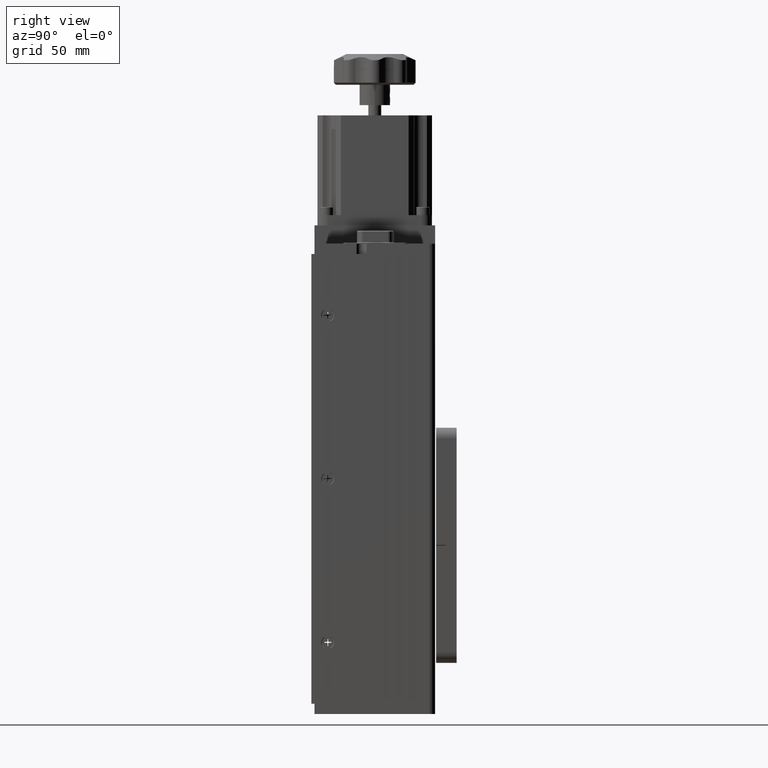
[diagram: clean part render]
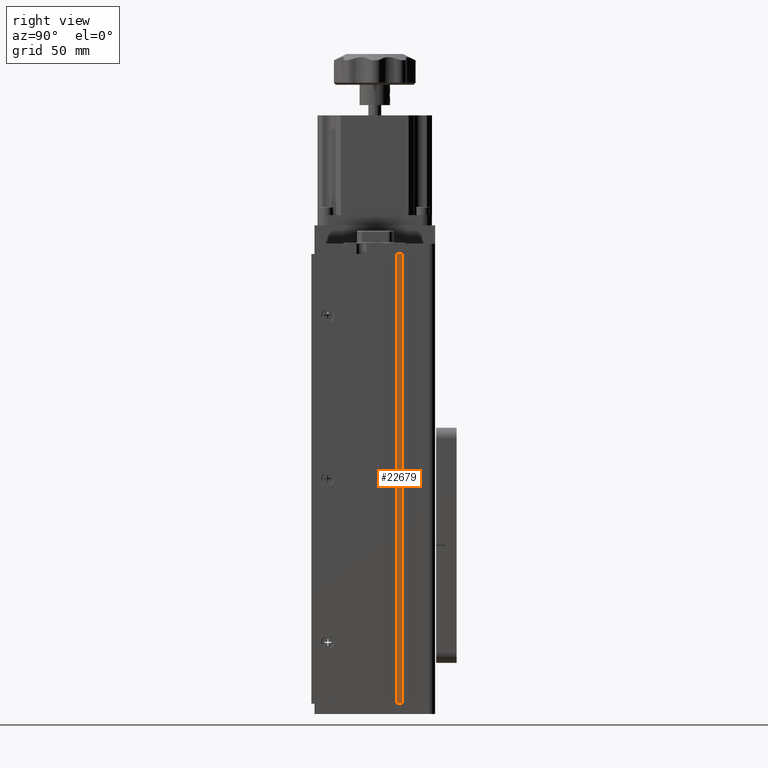
[diagram: same view with one face highlighted and labeled with its STEP entity id]
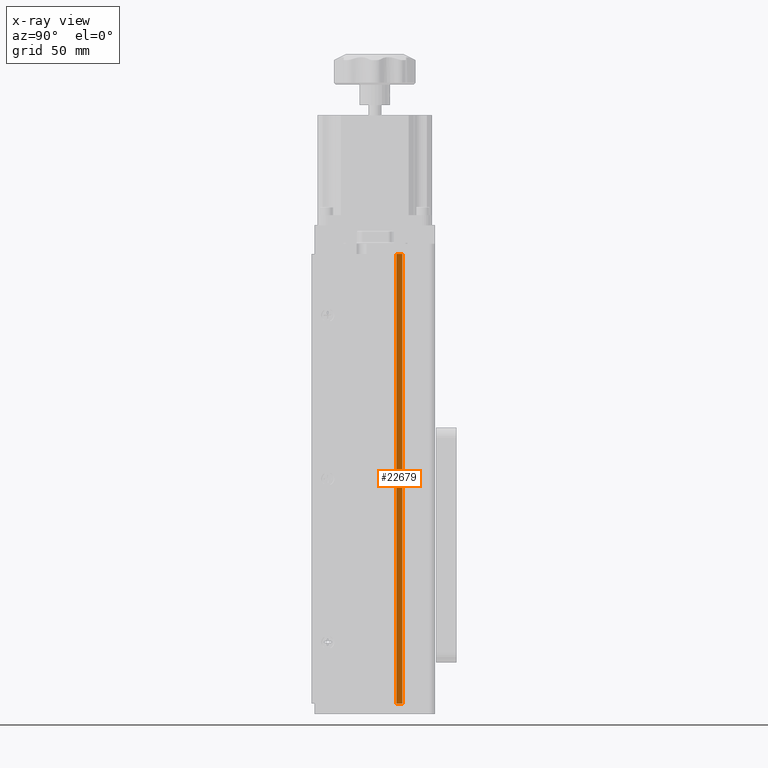
[diagram: x-ray of the same camera — body ghosted, the highlighted face saturated]
A machine part, right view. The second image highlights one B-rep face of the part: STEP entity #22679.
The next image is the same camera in x-ray: the body ghosted, the highlighted face saturated — about 0% of this face is hidden behind the body in this view.
In plain terms, the highlighted planar face has unit normal (-1, 0, 0).
Its self-contained STEP definition (entity closure, byte-faithful):
#2273 = LINE ( 'NONE', #31127, #32848 ) ;
#2359 = ORIENTED_EDGE ( 'NONE', *, *, #36964, .T. ) ;
#2821 = LINE ( 'NONE', #4007, #9826 ) ;
#4007 = CARTESIAN_POINT ( 'NONE',  ( 65.08919164396000700, 31.08234937935210600, -110.0000000000000000 ) ) ;
#6968 = DIRECTION ( 'NONE',  ( 0.0000000000000000000, 1.000000000000000000, 0.0000000000000000000 ) ) ;
#8618 = VECTOR ( 'NONE', #26207, 1000.000000000000000 ) ;
#8660 = CARTESIAN_POINT ( 'NONE',  ( 65.08919164396000700, 31.08234937935210600, 110.0000000000000000 ) ) ;
#8831 = EDGE_CURVE ( 'NONE', #12007, #24628, #2273, .T. ) ;
#8930 = DIRECTION ( 'NONE',  ( -1.000000000000000000, 0.0000000000000000000, 0.0000000000000000000 ) ) ;
#9826 = VECTOR ( 'NONE', #6968, 1000.000000000000000 ) ;
#9891 = FACE_OUTER_BOUND ( 'NONE', #36834, .T. ) ;
#10496 = LINE ( 'NONE', #14296, #8618 ) ;
#11644 = VECTOR ( 'NONE', #18115, 1000.000000000000000 ) ;
#12007 = VERTEX_POINT ( 'NONE', #8660 ) ;
#12675 = CARTESIAN_POINT ( 'NONE',  ( 65.08919164396000700, 34.08234937935204600, 110.0000000000000000 ) ) ;
#13646 = DIRECTION ( 'NONE',  ( 0.0000000000000000000, 1.000000000000000000, 0.0000000000000000000 ) ) ;
#14296 = CARTESIAN_POINT ( 'NONE',  ( 65.08919164396000700, 31.08234937935210600, 110.0000000000000000 ) ) ;
#14693 = PLANE ( 'NONE',  #26186 ) ;
#15871 = CARTESIAN_POINT ( 'NONE',  ( 65.08919164396000700, 34.08234937935204600, -110.0000000000000000 ) ) ;
#18115 = DIRECTION ( 'NONE',  ( -0.0000000000000000000, -0.0000000000000000000, -1.000000000000000000 ) ) ;
#19895 = EDGE_CURVE ( 'NONE', #24628, #28266, #27399, .T. ) ;
#22153 = ORIENTED_EDGE ( 'NONE', *, *, #33559, .T. ) ;
#22278 = ORIENTED_EDGE ( 'NONE', *, *, #8831, .F. ) ;
#22679 = ADVANCED_FACE ( 'NONE', ( #9891 ), #14693, .F. ) ;
#24628 = VERTEX_POINT ( 'NONE', #12675 ) ;
#26186 = AXIS2_PLACEMENT_3D ( 'NONE', #26618, #8930, #29600 ) ;
#26207 = DIRECTION ( 'NONE',  ( -0.0000000000000000000, -0.0000000000000000000, -1.000000000000000000 ) ) ;
#26618 = CARTESIAN_POINT ( 'NONE',  ( 65.08919164396000700, 31.08234937935210600, 110.0000000000000000 ) ) ;
#26809 = VERTEX_POINT ( 'NONE', #28445 ) ;
#27399 = LINE ( 'NONE', #33034, #11644 ) ;
#28266 = VERTEX_POINT ( 'NONE', #15871 ) ;
#28445 = CARTESIAN_POINT ( 'NONE',  ( 65.08919164396000700, 31.08234937935210600, -110.0000000000000000 ) ) ;
#29600 = DIRECTION ( 'NONE',  ( 0.0000000000000000000, 0.0000000000000000000, 1.000000000000000000 ) ) ;
#31127 = CARTESIAN_POINT ( 'NONE',  ( 65.08919164396000700, 31.08234937935210600, 110.0000000000000000 ) ) ;
#32848 = VECTOR ( 'NONE', #13646, 1000.000000000000000 ) ;
#33034 = CARTESIAN_POINT ( 'NONE',  ( 65.08919164396000700, 34.08234937935204600, 110.0000000000000000 ) ) ;
#33559 = EDGE_CURVE ( 'NONE', #26809, #28266, #2821, .T. ) ;
#34122 = ORIENTED_EDGE ( 'NONE', *, *, #19895, .F. ) ;
#36834 = EDGE_LOOP ( 'NONE', ( #22153, #34122, #22278, #2359 ) ) ;
#36964 = EDGE_CURVE ( 'NONE', #12007, #26809, #10496, .T. ) ;